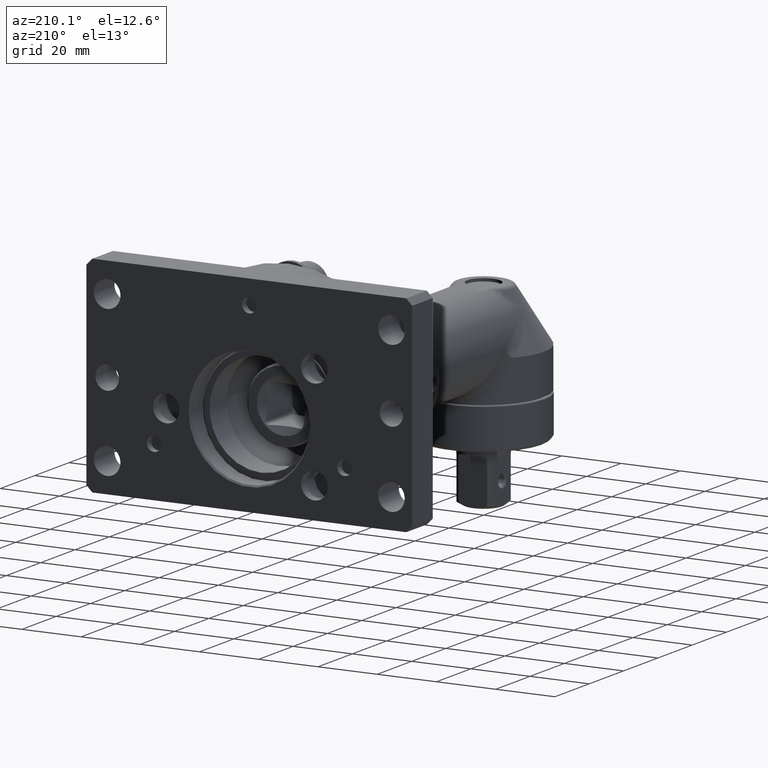
[diagram: clean part render]
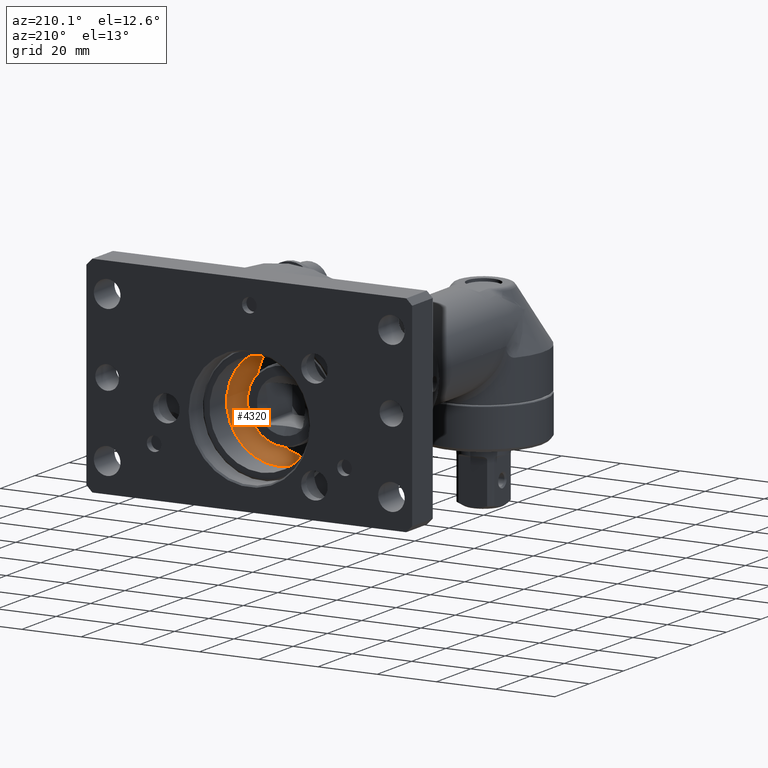
[diagram: same view with one face highlighted and labeled with its STEP entity id]
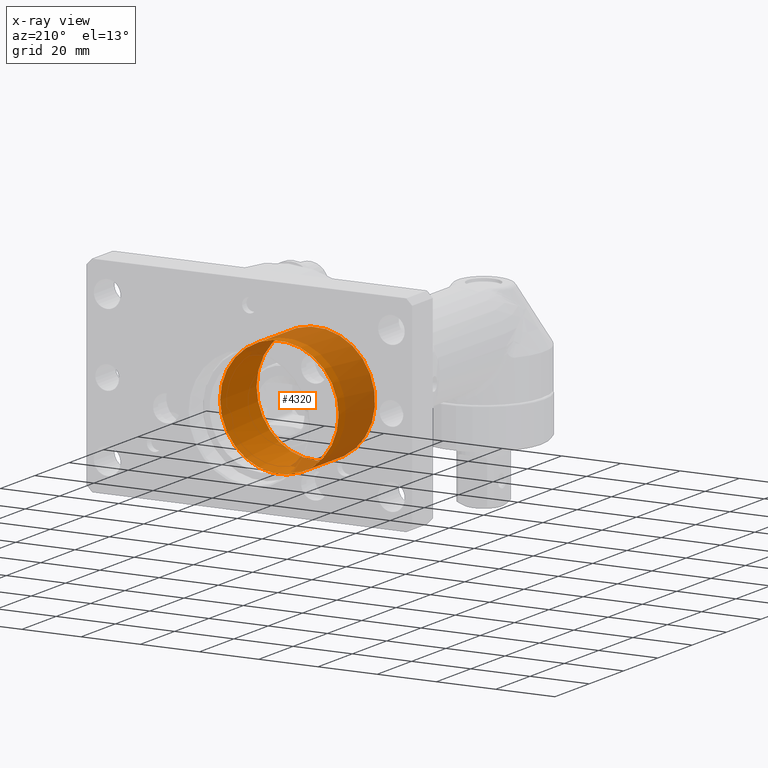
[diagram: x-ray of the same camera — body ghosted, the highlighted face saturated]
A machine part, auxiliary view. The second image highlights one B-rep face of the part: STEP entity #4320.
The next image is the same camera in x-ray: the body ghosted, the highlighted face saturated — about 45% of this face is hidden behind the body in this view.
In plain terms, the highlighted cylindrical surface (bore or boss wall) has radius 20 mm, axis along (-0, 1, -0).
Its self-contained STEP definition (entity closure, byte-faithful):
#225=LINE('',#8268,#432);
#432=VECTOR('',#5616,20.);
#610=CYLINDRICAL_SURFACE('',#4724,20.);
#802=FACE_OUTER_BOUND('',#1065,.T.);
#1065=EDGE_LOOP('',(#3250,#3251,#3252,#3253,#3254,#3255));
#1379=CIRCLE('',#4683,20.);
#1380=CIRCLE('',#4684,20.);
#1411=CIRCLE('',#4725,20.);
#1412=CIRCLE('',#4726,20.);
#1788=VERTEX_POINT('',#8169);
#1789=VERTEX_POINT('',#8170);
#1822=VERTEX_POINT('',#8264);
#1823=VERTEX_POINT('',#8265);
#2306=EDGE_CURVE('',#1788,#1789,#1379,.T.);
#2307=EDGE_CURVE('',#1789,#1788,#1380,.T.);
#2350=EDGE_CURVE('',#1822,#1823,#1411,.T.);
#2351=EDGE_CURVE('',#1823,#1822,#1412,.T.);
#2352=EDGE_CURVE('',#1823,#1789,#225,.T.);
#3250=ORIENTED_EDGE('',*,*,#2350,.F.);
#3251=ORIENTED_EDGE('',*,*,#2351,.F.);
#3252=ORIENTED_EDGE('',*,*,#2352,.T.);
#3253=ORIENTED_EDGE('',*,*,#2307,.T.);
#3254=ORIENTED_EDGE('',*,*,#2306,.T.);
#3255=ORIENTED_EDGE('',*,*,#2352,.F.);
#4320=ADVANCED_FACE('',(#802),#610,.F.);
#4683=AXIS2_PLACEMENT_3D('',#8171,#5519,#5520);
#4684=AXIS2_PLACEMENT_3D('',#8172,#5521,#5522);
#4724=AXIS2_PLACEMENT_3D('',#8263,#5610,#5611);
#4725=AXIS2_PLACEMENT_3D('',#8266,#5612,#5613);
#4726=AXIS2_PLACEMENT_3D('',#8267,#5614,#5615);
#5519=DIRECTION('center_axis',(-3.41906291691818E-16,1.,-1.88737914186277E-15));
#5520=DIRECTION('ref_axis',(1.73472347597682E-16,-1.88737914186277E-15,
-1.));
#5521=DIRECTION('center_axis',(-3.41906291691818E-16,1.,-1.88737914186277E-15));
#5522=DIRECTION('ref_axis',(1.73472347597682E-16,-1.88737914186277E-15,
-1.));
#5610=DIRECTION('center_axis',(-3.41906291691818E-16,1.,-1.88737914186277E-15));
#5611=DIRECTION('ref_axis',(-1.,-2.20425031414454E-16,-1.73472347597681E-16));
#5612=DIRECTION('center_axis',(-3.41906291691818E-16,1.,-1.88737914186277E-15));
#5613=DIRECTION('ref_axis',(1.73472347597682E-16,-1.88737914186277E-15,
-1.));
#5614=DIRECTION('center_axis',(-3.41906291691818E-16,1.,-1.88737914186277E-15));
#5615=DIRECTION('ref_axis',(1.73472347597682E-16,-1.88737914186277E-15,
-1.));
#5616=DIRECTION('',(-3.41906291691818E-16,1.,-1.88737914186277E-15));
#8169=CARTESIAN_POINT('',(-20.,119.,-2.28350671704902E-13));
#8170=CARTESIAN_POINT('',(20.,119.,-2.2386107139929E-13));
#8171=CARTESIAN_POINT('Origin',(-1.11577061698206E-14,119.,-2.24881224752949E-13));
#8172=CARTESIAN_POINT('Origin',(-1.11577061698206E-14,119.,-2.24881224752949E-13));
#8263=CARTESIAN_POINT('Origin',(-7.52495182059508E-15,108.375,-2.04827821370657E-13));
#8264=CARTESIAN_POINT('',(-4.82784793936124,97.7499999999996,-19.4085518335195));
#8265=CARTESIAN_POINT('',(20.,97.7499999999995,-1.83754264634706E-13));
#8266=CARTESIAN_POINT('Origin',(-3.89219747136951E-15,97.7499999999995,
-1.84774417988365E-13));
#8267=CARTESIAN_POINT('Origin',(-3.89219747136951E-15,97.7499999999995,
-1.84774417988365E-13));
#8268=CARTESIAN_POINT('',(20.,108.375,-2.03807668016998E-13));